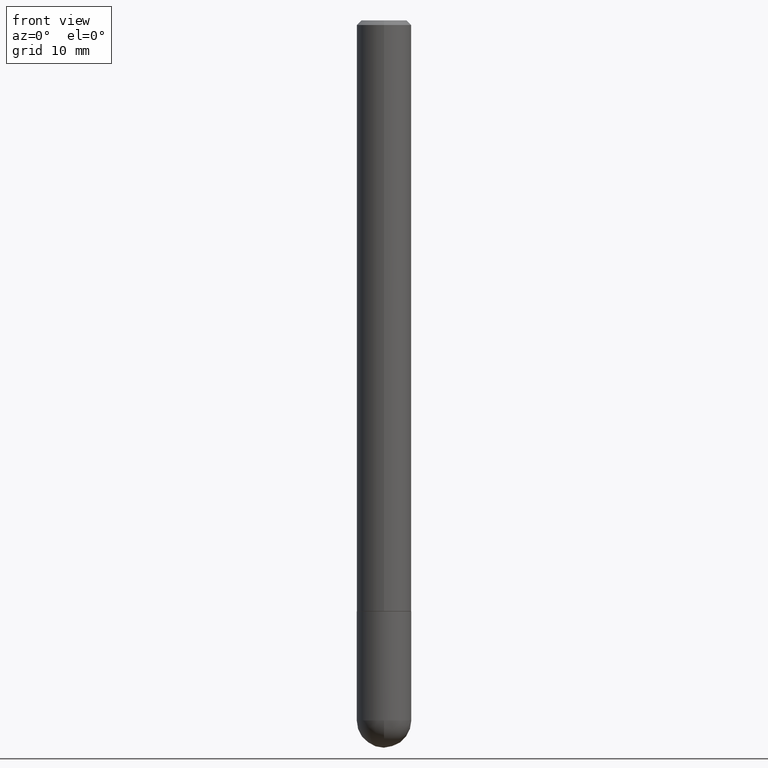
[diagram: clean part render]
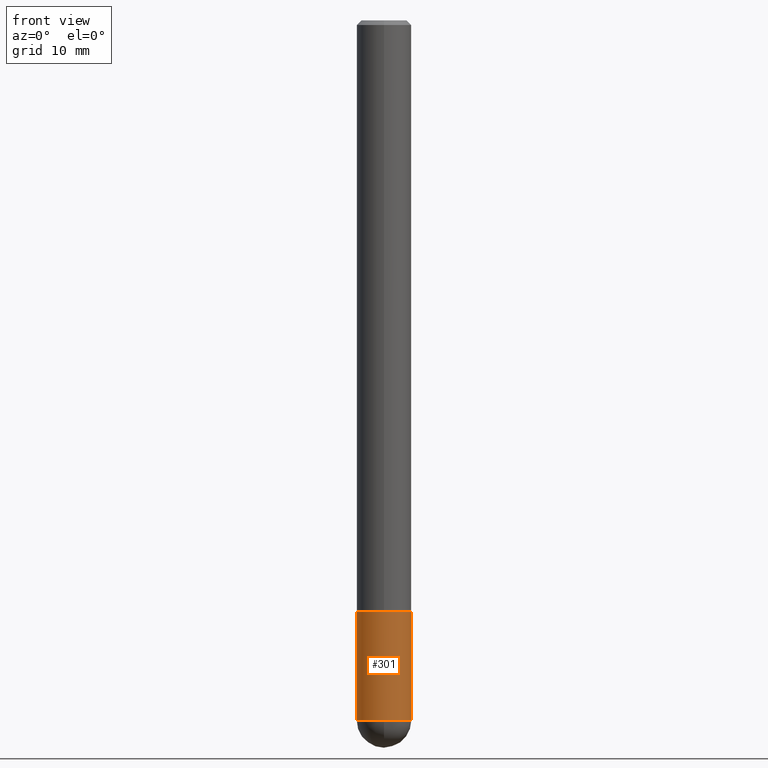
[diagram: same view with one face highlighted and labeled with its STEP entity id]
A machine part, front view. The second image highlights one B-rep face of the part: STEP entity #301.
In plain terms, the highlighted cylindrical surface (edge-blend (fillet) strip) has radius 2.9997 mm, axis along (-0, 0, 1).
Its self-contained STEP definition (entity closure, byte-faithful):
#1 = CARTESIAN_POINT ( 'NONE',  ( -8.391509709326067066E-16, -0.1181000000000109740, -3.031499999999998973 ) ) ;
#2 = FACE_OUTER_BOUND ( 'NONE', #132, .T. ) ;
#3 = VERTEX_POINT ( 'NONE', #373 ) ;
#5 = DIRECTION ( 'NONE',  ( 1.000000000000000000, -6.982962677686266711E-15, 4.876176775795935793E-29 ) ) ;
#11 = VERTEX_POINT ( 'NONE', #139 ) ;
#15 = EDGE_CURVE ( 'NONE', #356, #11, #142, .T. ) ;
#22 = LINE ( 'NONE', #310, #307 ) ;
#28 = DIRECTION ( 'NONE',  ( -2.445468806185136877E-29, 3.491481338843145188E-15, 1.000000000000000000 ) ) ;
#50 = CARTESIAN_POINT ( 'NONE',  ( -0.1181000000000000383, 8.391509709326785915E-16, -5.809262341591045886E-30 ) ) ;
#54 = DIRECTION ( 'NONE',  ( -2.445468806185136597E-29, 3.491481338843145583E-15, 1.000000000000000000 ) ) ;
#63 = AXIS2_PLACEMENT_3D ( 'NONE', #262, #292, #5 ) ;
#86 = EDGE_CURVE ( 'NONE', #234, #239, #293, .T. ) ;
#108 = EDGE_CURVE ( 'NONE', #11, #3, #185, .T. ) ;
#113 = CARTESIAN_POINT ( 'NONE',  ( 7.413438685950241710E-29, -1.058442567870299344E-14, -3.031499999999999417 ) ) ;
#118 = DIRECTION ( 'NONE',  ( -2.445468806185136877E-29, 3.491481338843145188E-15, 1.000000000000000000 ) ) ;
#126 = CYLINDRICAL_SURFACE ( 'NONE', #63, 0.1181000000000000383 ) ;
#132 = EDGE_LOOP ( 'NONE', ( #352, #230, #320, #295, #199 ) ) ;
#137 = CARTESIAN_POINT ( 'NONE',  ( 6.257954675027765161E-29, -8.934700746099610252E-15, -2.559000000000000163 ) ) ;
#139 = CARTESIAN_POINT ( 'NONE',  ( -0.1181000000000000383, -8.920412241468623652E-15, -2.559000000000000163 ) ) ;
#142 = LINE ( 'NONE', #50, #287 ) ;
#153 = AXIS2_PLACEMENT_3D ( 'NONE', #137, #332, #275 ) ;
#168 = EDGE_CURVE ( 'NONE', #239, #3, #22, .T. ) ;
#171 = DIRECTION ( 'NONE',  ( 1.000000000000000000, -6.982962677686270655E-15, 0.000000000000000000 ) ) ;
#185 = CIRCLE ( 'NONE', #153, 0.1181000000000000383 ) ;
#196 = AXIS2_PLACEMENT_3D ( 'NONE', #319, #233, #353 ) ;
#199 = ORIENTED_EDGE ( 'NONE', *, *, #108, .F. ) ;
#230 = ORIENTED_EDGE ( 'NONE', *, *, #261, .T. ) ;
#233 = DIRECTION ( 'NONE',  ( -2.445468806185136597E-29, 3.491481338843145583E-15, 1.000000000000000000 ) ) ;
#234 = VERTEX_POINT ( 'NONE', #1 ) ;
#239 = VERTEX_POINT ( 'NONE', #386 ) ;
#261 = EDGE_CURVE ( 'NONE', #356, #234, #343, .T. ) ;
#262 = CARTESIAN_POINT ( 'NONE',  ( 0.000000000000000000, 0.000000000000000000, 0.000000000000000000 ) ) ;
#275 = DIRECTION ( 'NONE',  ( 1.000000000000000000, -6.982962677686270655E-15, 0.000000000000000000 ) ) ;
#287 = VECTOR ( 'NONE', #118, 39.37007874015748143 ) ;
#292 = DIRECTION ( 'NONE',  ( -2.445468806185136597E-29, 3.491481338843145583E-15, 1.000000000000000000 ) ) ;
#293 = CIRCLE ( 'NONE', #349, 0.1181000000000000383 ) ;
#295 = ORIENTED_EDGE ( 'NONE', *, *, #168, .T. ) ;
#301 = ADVANCED_FACE ( 'NONE', ( #2 ), #126, .T. ) ;
#307 = VECTOR ( 'NONE', #28, 39.37007874015748143 ) ;
#310 = CARTESIAN_POINT ( 'NONE',  ( 0.1181000000000000383, -8.246878922347483612E-16, 5.758764772215001842E-30 ) ) ;
#319 = CARTESIAN_POINT ( 'NONE',  ( 7.413438685950241710E-29, -1.058442567870299344E-14, -3.031499999999999417 ) ) ;
#320 = ORIENTED_EDGE ( 'NONE', *, *, #86, .T. ) ;
#332 = DIRECTION ( 'NONE',  ( -2.445468806185136597E-29, 3.491481338843145583E-15, 1.000000000000000000 ) ) ;
#343 = CIRCLE ( 'NONE', #196, 0.1181000000000000383 ) ;
#349 = AXIS2_PLACEMENT_3D ( 'NONE', #113, #54, #171 ) ;
#352 = ORIENTED_EDGE ( 'NONE', *, *, #15, .F. ) ;
#353 = DIRECTION ( 'NONE',  ( 1.000000000000000000, -6.982962677686270655E-15, 0.000000000000000000 ) ) ;
#356 = VERTEX_POINT ( 'NONE', #358 ) ;
#358 = CARTESIAN_POINT ( 'NONE',  ( -0.1181000000000000383, -8.920412241468623652E-15, -3.031499999999999417 ) ) ;
#373 = CARTESIAN_POINT ( 'NONE',  ( 0.1181000000000000383, -9.759388638334360093E-15, -2.559000000000000163 ) ) ;
#386 = CARTESIAN_POINT ( 'NONE',  ( 0.1181000000000000383, -1.058425110463605090E-14, -3.031499999999999417 ) ) ;